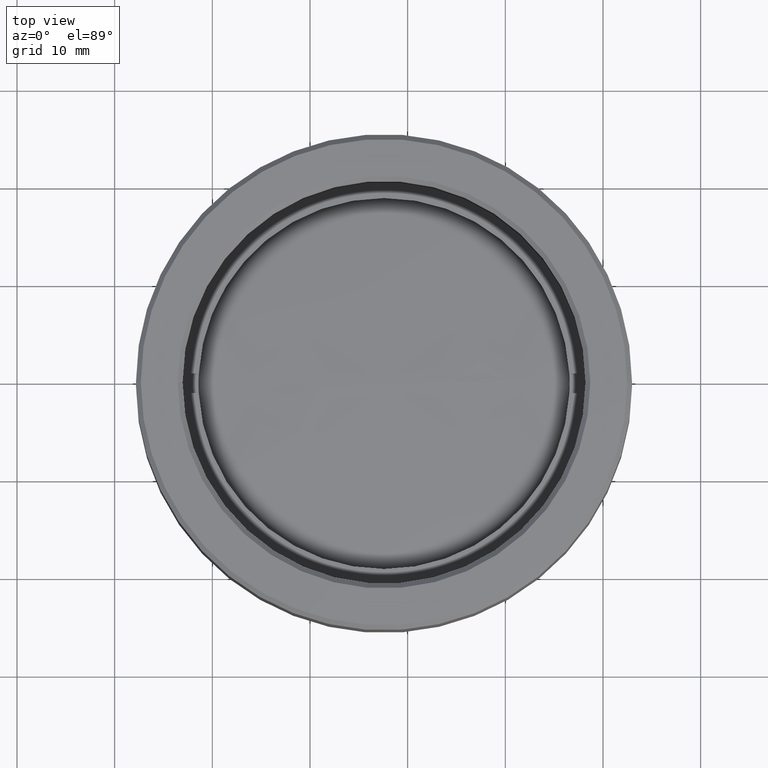
[diagram: clean part render]
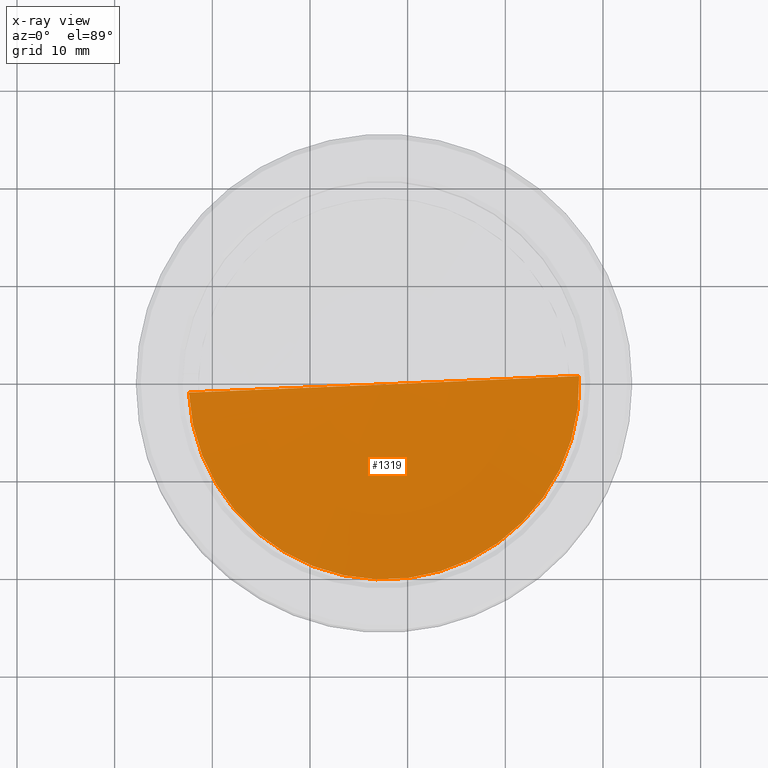
[diagram: x-ray — body ghosted, one internal face saturated and labeled with its STEP entity id]
A machine part, top view, then the same camera in x-ray: the body is ghosted and one INTERNAL B-rep face — a face not visible from any outside direction — is saturated and labeled: STEP entity #1319.
In plain terms, the highlighted spherical surface has radius 162.392 mm.
Its self-contained STEP definition (entity closure, byte-faithful):
#125 = DIRECTION ( 'NONE',  ( 0.000000000000000000, 0.000000000000000000, 1.000000000000000000 ) ) ;
#221 = ORIENTED_EDGE ( 'NONE', *, *, #1330, .T. ) ;
#256 = CARTESIAN_POINT ( 'NONE',  ( 0.000000000000000000, 0.000000000000000000, -2.683706271915774710 ) ) ;
#394 = CARTESIAN_POINT ( 'NONE',  ( 0.000000000000000000, 0.000000000000000000, 158.4720000000000084 ) ) ;
#495 = AXIS2_PLACEMENT_3D ( 'NONE', #1176, #1557, #608 ) ;
#605 = EDGE_LOOP ( 'NONE', ( #221, #1277 ) ) ;
#608 = DIRECTION ( 'NONE',  ( 0.000000000000000000, 0.000000000000000000, 1.000000000000000000 ) ) ;
#667 = DIRECTION ( 'NONE',  ( -1.000000000000000000, 0.000000000000000000, 0.000000000000000000 ) ) ;
#773 = CIRCLE ( 'NONE', #858, 20.00000000000000000 ) ;
#775 = VERTEX_POINT ( 'NONE', #1096 ) ;
#858 = AXIS2_PLACEMENT_3D ( 'NONE', #256, #125, #1478 ) ;
#923 = CIRCLE ( 'NONE', #495, 162.3920000000000243 ) ;
#1056 = AXIS2_PLACEMENT_3D ( 'NONE', #394, #1064, #667 ) ;
#1064 = DIRECTION ( 'NONE',  ( -0.000000000000000000, -0.000000000000000000, -1.000000000000000000 ) ) ;
#1096 = CARTESIAN_POINT ( 'NONE',  ( 20.00000000000000000, -2.449293598294709668E-15, -2.683706271915774710 ) ) ;
#1176 = CARTESIAN_POINT ( 'NONE',  ( 0.000000000000000000, 0.000000000000000000, 158.4720000000000084 ) ) ;
#1277 = ORIENTED_EDGE ( 'NONE', *, *, #1634, .T. ) ;
#1319 = ADVANCED_FACE ( 'NONE', ( #1621 ), #1615, .F. ) ;
#1330 = EDGE_CURVE ( 'NONE', #1519, #775, #773, .T. ) ;
#1478 = DIRECTION ( 'NONE',  ( 1.000000000000000000, 0.000000000000000000, 0.000000000000000000 ) ) ;
#1519 = VERTEX_POINT ( 'NONE', #1673 ) ;
#1557 = DIRECTION ( 'NONE',  ( 0.000000000000000000, 1.000000000000000000, 0.000000000000000000 ) ) ;
#1615 = SPHERICAL_SURFACE ( 'NONE', #1056, 162.3919999999999959 ) ;
#1621 = FACE_OUTER_BOUND ( 'NONE', #605, .T. ) ;
#1634 = EDGE_CURVE ( 'NONE', #775, #1519, #923, .T. ) ;
#1673 = CARTESIAN_POINT ( 'NONE',  ( -20.00000000000000000, 0.000000000000000000, -2.683706271915774710 ) ) ;